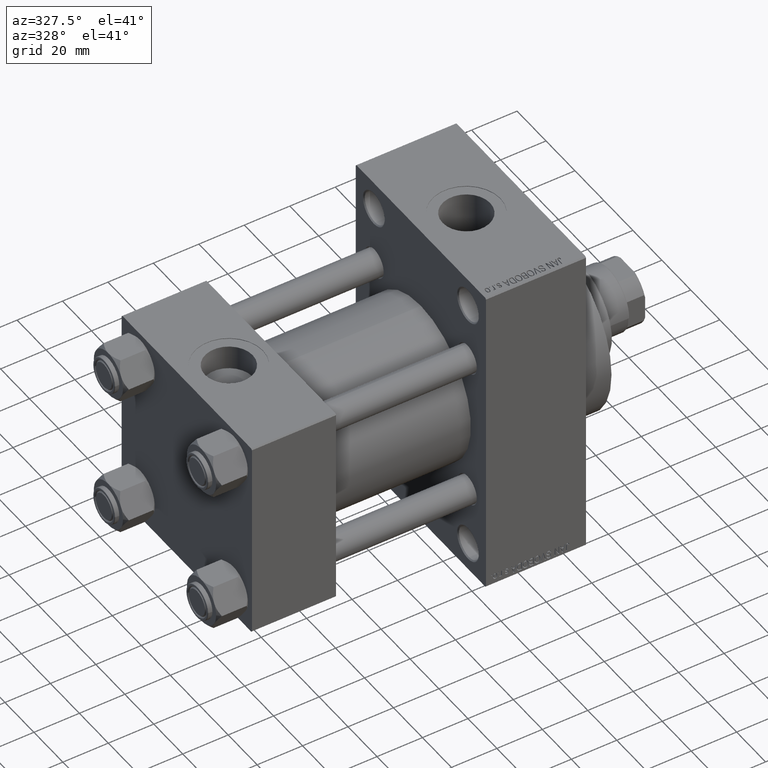
[diagram: clean part render]
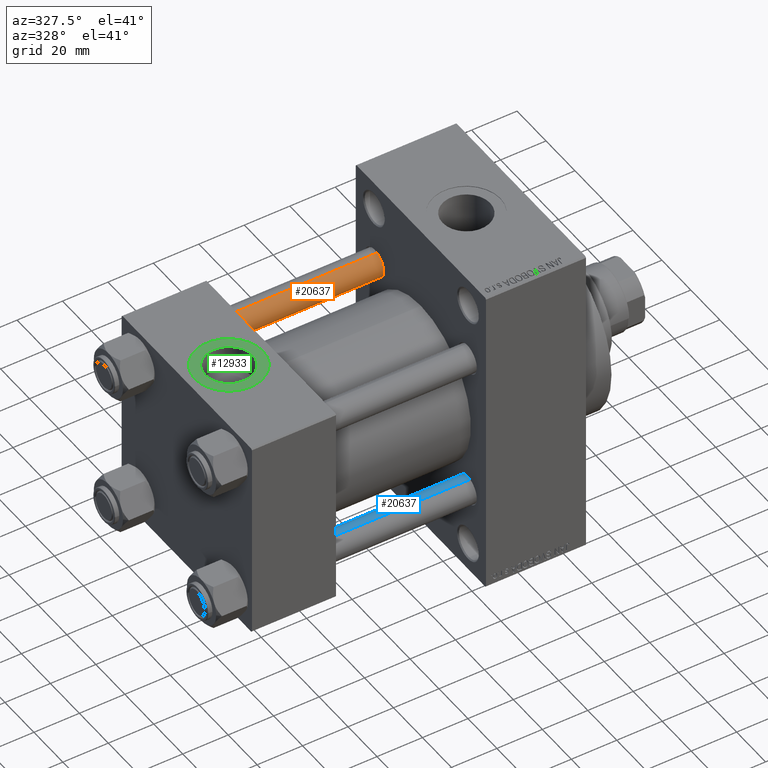
[diagram: same view with three faces highlighted in distinct colors, each labeled with its STEP entity id]
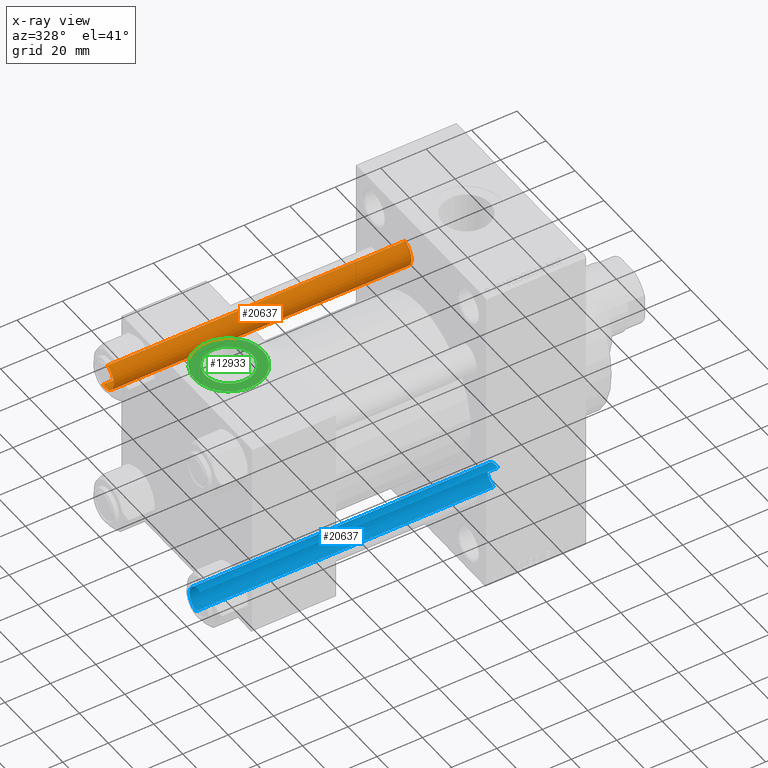
[diagram: x-ray of the same camera — body ghosted, the three highlighted faces saturated]
A machine part, auxiliary view with three faces highlighted in distinct colors.
The next image is the same camera in x-ray (body ghosted, the three faces saturated) — at least one of them is partly hidden behind the body in this view.
Their STEP definitions:

[orange] entity #20637 — the highlighted cylindrical surface (edge-blend (fillet) strip) has radius 6 mm, axis along (-1, -0, 0).
#300 = VERTEX_POINT ( 'NONE', #11860 ) ;
#2718 = VERTEX_POINT ( 'NONE', #45477 ) ;
#3138 = ORIENTED_EDGE ( 'NONE', *, *, #7655, .T. ) ;
#4096 = ORIENTED_EDGE ( 'NONE', *, *, #34142, .T. ) ;
#7655 = EDGE_CURVE ( 'NONE', #2718, #36695, #45165, .T. ) ;
#8172 = CARTESIAN_POINT ( 'NONE',  ( -6.000000000000000888, 0.000000000000000000, 132.0000000000000000 ) ) ;
#11426 = CARTESIAN_POINT ( 'NONE',  ( 6.000000000000000888, 7.347880794884120722E-16, 0.5000000000000281997 ) ) ;
#11860 = CARTESIAN_POINT ( 'NONE',  ( -6.000000000000000888, 0.000000000000000000, 0.5000000000000281997 ) ) ;
#13732 = LINE ( 'NONE', #25434, #32668 ) ;
#13801 = CARTESIAN_POINT ( 'NONE',  ( 0.000000000000000000, 0.000000000000000000, 131.4999999999999716 ) ) ;
#14312 = EDGE_CURVE ( 'NONE', #2718, #15700, #13732, .T. ) ;
#15084 = CARTESIAN_POINT ( 'NONE',  ( -6.000000000000000888, 0.000000000000000000, 131.4999999999999716 ) ) ;
#15294 = VECTOR ( 'NONE', #46059, 1000.000000000000000 ) ;
#15632 = LINE ( 'NONE', #8172, #15294 ) ;
#15700 = VERTEX_POINT ( 'NONE', #11426 ) ;
#16122 = DIRECTION ( 'NONE',  ( 0.000000000000000000, 0.000000000000000000, -1.000000000000000000 ) ) ;
#16428 = EDGE_LOOP ( 'NONE', ( #44850, #3138, #4096, #17149 ) ) ;
#17149 = ORIENTED_EDGE ( 'NONE', *, *, #23592, .T. ) ;
#18181 = FACE_OUTER_BOUND ( 'NONE', #16428, .T. ) ;
#20637 = ADVANCED_FACE ( 'NONE', ( #18181 ), #44365, .T. ) ;
#23592 = EDGE_CURVE ( 'NONE', #300, #15700, #24565, .T. ) ;
#23642 = AXIS2_PLACEMENT_3D ( 'NONE', #13801, #16122, #27583 ) ;
#24565 = CIRCLE ( 'NONE', #40504, 6.000000000000000888 ) ;
#25434 = CARTESIAN_POINT ( 'NONE',  ( 6.000000000000000888, 7.347880794884120722E-16, 132.0000000000000000 ) ) ;
#27583 = DIRECTION ( 'NONE',  ( 1.000000000000000000, 0.000000000000000000, 0.000000000000000000 ) ) ;
#28936 = DIRECTION ( 'NONE',  ( -0.000000000000000000, -0.000000000000000000, -1.000000000000000000 ) ) ;
#32668 = VECTOR ( 'NONE', #28936, 1000.000000000000000 ) ;
#33389 = CARTESIAN_POINT ( 'NONE',  ( 0.000000000000000000, 0.000000000000000000, 132.0000000000000000 ) ) ;
#34142 = EDGE_CURVE ( 'NONE', #36695, #300, #15632, .T. ) ;
#34464 = CARTESIAN_POINT ( 'NONE',  ( 0.000000000000000000, 0.000000000000000000, 0.5000000000000281997 ) ) ;
#36695 = VERTEX_POINT ( 'NONE', #15084 ) ;
#39132 = AXIS2_PLACEMENT_3D ( 'NONE', #33389, #48599, #41120 ) ;
#40504 = AXIS2_PLACEMENT_3D ( 'NONE', #34464, #48699, #41207 ) ;
#41120 = DIRECTION ( 'NONE',  ( -1.000000000000000000, 0.000000000000000000, 0.000000000000000000 ) ) ;
#41207 = DIRECTION ( 'NONE',  ( 1.000000000000000000, 0.000000000000000000, 0.000000000000000000 ) ) ;
#44365 = CYLINDRICAL_SURFACE ( 'NONE', #39132, 6.000000000000000888 ) ;
#44850 = ORIENTED_EDGE ( 'NONE', *, *, #14312, .F. ) ;
#45165 = CIRCLE ( 'NONE', #23642, 6.000000000000000888 ) ;
#45477 = CARTESIAN_POINT ( 'NONE',  ( 6.000000000000000888, 7.347880794884120722E-16, 131.4999999999999716 ) ) ;
#46059 = DIRECTION ( 'NONE',  ( -0.000000000000000000, -0.000000000000000000, -1.000000000000000000 ) ) ;
#48599 = DIRECTION ( 'NONE',  ( -0.000000000000000000, -0.000000000000000000, -1.000000000000000000 ) ) ;
#48699 = DIRECTION ( 'NONE',  ( -0.000000000000000000, -0.000000000000000000, 1.000000000000000000 ) ) ;

[blue] entity #20637 — the highlighted cylindrical surface (edge-blend (fillet) strip) has radius 6 mm, axis along (-1, 0, 0).
#300 = VERTEX_POINT ( 'NONE', #11860 ) ;
#2718 = VERTEX_POINT ( 'NONE', #45477 ) ;
#3138 = ORIENTED_EDGE ( 'NONE', *, *, #7655, .T. ) ;
#4096 = ORIENTED_EDGE ( 'NONE', *, *, #34142, .T. ) ;
#7655 = EDGE_CURVE ( 'NONE', #2718, #36695, #45165, .T. ) ;
#8172 = CARTESIAN_POINT ( 'NONE',  ( -6.000000000000000888, 0.000000000000000000, 132.0000000000000000 ) ) ;
#11426 = CARTESIAN_POINT ( 'NONE',  ( 6.000000000000000888, 7.347880794884120722E-16, 0.5000000000000281997 ) ) ;
#11860 = CARTESIAN_POINT ( 'NONE',  ( -6.000000000000000888, 0.000000000000000000, 0.5000000000000281997 ) ) ;
#13732 = LINE ( 'NONE', #25434, #32668 ) ;
#13801 = CARTESIAN_POINT ( 'NONE',  ( 0.000000000000000000, 0.000000000000000000, 131.4999999999999716 ) ) ;
#14312 = EDGE_CURVE ( 'NONE', #2718, #15700, #13732, .T. ) ;
#15084 = CARTESIAN_POINT ( 'NONE',  ( -6.000000000000000888, 0.000000000000000000, 131.4999999999999716 ) ) ;
#15294 = VECTOR ( 'NONE', #46059, 1000.000000000000000 ) ;
#15632 = LINE ( 'NONE', #8172, #15294 ) ;
#15700 = VERTEX_POINT ( 'NONE', #11426 ) ;
#16122 = DIRECTION ( 'NONE',  ( 0.000000000000000000, 0.000000000000000000, -1.000000000000000000 ) ) ;
#16428 = EDGE_LOOP ( 'NONE', ( #44850, #3138, #4096, #17149 ) ) ;
#17149 = ORIENTED_EDGE ( 'NONE', *, *, #23592, .T. ) ;
#18181 = FACE_OUTER_BOUND ( 'NONE', #16428, .T. ) ;
#20637 = ADVANCED_FACE ( 'NONE', ( #18181 ), #44365, .T. ) ;
#23592 = EDGE_CURVE ( 'NONE', #300, #15700, #24565, .T. ) ;
#23642 = AXIS2_PLACEMENT_3D ( 'NONE', #13801, #16122, #27583 ) ;
#24565 = CIRCLE ( 'NONE', #40504, 6.000000000000000888 ) ;
#25434 = CARTESIAN_POINT ( 'NONE',  ( 6.000000000000000888, 7.347880794884120722E-16, 132.0000000000000000 ) ) ;
#27583 = DIRECTION ( 'NONE',  ( 1.000000000000000000, 0.000000000000000000, 0.000000000000000000 ) ) ;
#28936 = DIRECTION ( 'NONE',  ( -0.000000000000000000, -0.000000000000000000, -1.000000000000000000 ) ) ;
#32668 = VECTOR ( 'NONE', #28936, 1000.000000000000000 ) ;
#33389 = CARTESIAN_POINT ( 'NONE',  ( 0.000000000000000000, 0.000000000000000000, 132.0000000000000000 ) ) ;
#34142 = EDGE_CURVE ( 'NONE', #36695, #300, #15632, .T. ) ;
#34464 = CARTESIAN_POINT ( 'NONE',  ( 0.000000000000000000, 0.000000000000000000, 0.5000000000000281997 ) ) ;
#36695 = VERTEX_POINT ( 'NONE', #15084 ) ;
#39132 = AXIS2_PLACEMENT_3D ( 'NONE', #33389, #48599, #41120 ) ;
#40504 = AXIS2_PLACEMENT_3D ( 'NONE', #34464, #48699, #41207 ) ;
#41120 = DIRECTION ( 'NONE',  ( -1.000000000000000000, 0.000000000000000000, 0.000000000000000000 ) ) ;
#41207 = DIRECTION ( 'NONE',  ( 1.000000000000000000, 0.000000000000000000, 0.000000000000000000 ) ) ;
#44365 = CYLINDRICAL_SURFACE ( 'NONE', #39132, 6.000000000000000888 ) ;
#44850 = ORIENTED_EDGE ( 'NONE', *, *, #14312, .F. ) ;
#45165 = CIRCLE ( 'NONE', #23642, 6.000000000000000888 ) ;
#45477 = CARTESIAN_POINT ( 'NONE',  ( 6.000000000000000888, 7.347880794884120722E-16, 131.4999999999999716 ) ) ;
#46059 = DIRECTION ( 'NONE',  ( -0.000000000000000000, -0.000000000000000000, -1.000000000000000000 ) ) ;
#48599 = DIRECTION ( 'NONE',  ( -0.000000000000000000, -0.000000000000000000, -1.000000000000000000 ) ) ;
#48699 = DIRECTION ( 'NONE',  ( -0.000000000000000000, -0.000000000000000000, 1.000000000000000000 ) ) ;

[green] entity #12933 — the highlighted planar face has unit normal (0, 0, 1).
#1584 = EDGE_LOOP ( 'NONE', ( #15996, #33419 ) ) ;
#2740 = EDGE_CURVE ( 'NONE', #27604, #8292, #30010, .T. ) ;
#3615 = DIRECTION ( 'NONE',  ( 1.000000000000000000, 0.000000000000000000, 0.000000000000000000 ) ) ;
#6567 = DIRECTION ( 'NONE',  ( 1.000000000000000000, 0.000000000000000000, -0.000000000000000000 ) ) ;
#6984 = DIRECTION ( 'NONE',  ( 0.000000000000000000, 0.000000000000000000, 1.000000000000000000 ) ) ;
#7446 = CARTESIAN_POINT ( 'NONE',  ( 18.50000000000000000, -8.673617379884038628E-15, 44.80000000000000426 ) ) ;
#7515 = CARTESIAN_POINT ( 'NONE',  ( 3.499999999999997780, -6.836647181163008250E-15, 44.80000000000000426 ) ) ;
#8292 = VERTEX_POINT ( 'NONE', #21661 ) ;
#9776 = VERTEX_POINT ( 'NONE', #7515 ) ;
#10629 = CIRCLE ( 'NONE', #15422, 10.48000000000000043 ) ;
#10787 = PLANE ( 'NONE',  #37370 ) ;
#11036 = FACE_BOUND ( 'NONE', #1584, .T. ) ;
#12492 = CARTESIAN_POINT ( 'NONE',  ( 33.50000000000000000, -8.673617379884038628E-15, 44.80000000000000426 ) ) ;
#12933 = ADVANCED_FACE ( 'NONE', ( #11036, #25233 ), #10787, .T. ) ;
#15390 = AXIS2_PLACEMENT_3D ( 'NONE', #7446, #41590, #43290 ) ;
#15422 = AXIS2_PLACEMENT_3D ( 'NONE', #22034, #41724, #26508 ) ;
#15996 = ORIENTED_EDGE ( 'NONE', *, *, #2740, .F. ) ;
#21661 = CARTESIAN_POINT ( 'NONE',  ( 8.019999999999999574, -7.390187534377611561E-15, 44.80000000000000426 ) ) ;
#22034 = CARTESIAN_POINT ( 'NONE',  ( 18.50000000000000000, -8.673617379884038628E-15, 44.80000000000000426 ) ) ;
#22250 = DIRECTION ( 'NONE',  ( 0.000000000000000000, 0.000000000000000000, 1.000000000000000000 ) ) ;
#22420 = CARTESIAN_POINT ( 'NONE',  ( 18.50000000000000000, -8.673617379884038628E-15, 44.80000000000000426 ) ) ;
#25233 = FACE_OUTER_BOUND ( 'NONE', #29093, .T. ) ;
#26508 = DIRECTION ( 'NONE',  ( 1.000000000000000000, 0.000000000000000000, 0.000000000000000000 ) ) ;
#26515 = CARTESIAN_POINT ( 'NONE',  ( 18.50000000000000000, -8.673617379884038628E-15, 44.80000000000000426 ) ) ;
#27604 = VERTEX_POINT ( 'NONE', #29396 ) ;
#29093 = EDGE_LOOP ( 'NONE', ( #42572, #29777 ) ) ;
#29396 = CARTESIAN_POINT ( 'NONE',  ( 28.98000000000000043, -8.673617379884038628E-15, 44.80000000000000426 ) ) ;
#29777 = ORIENTED_EDGE ( 'NONE', *, *, #37297, .T. ) ;
#30010 = CIRCLE ( 'NONE', #36368, 10.48000000000000043 ) ;
#30318 = CIRCLE ( 'NONE', #46216, 15.00000000000000355 ) ;
#30377 = EDGE_CURVE ( 'NONE', #48543, #9776, #30318, .T. ) ;
#30521 = CIRCLE ( 'NONE', #15390, 15.00000000000000355 ) ;
#33419 = ORIENTED_EDGE ( 'NONE', *, *, #38040, .F. ) ;
#33724 = CARTESIAN_POINT ( 'NONE',  ( 18.50000000000000000, -8.673617379884038628E-15, 44.80000000000000426 ) ) ;
#36368 = AXIS2_PLACEMENT_3D ( 'NONE', #26515, #41242, #3615 ) ;
#37297 = EDGE_CURVE ( 'NONE', #9776, #48543, #30521, .T. ) ;
#37370 = AXIS2_PLACEMENT_3D ( 'NONE', #33724, #22250, #6567 ) ;
#38040 = EDGE_CURVE ( 'NONE', #8292, #27604, #10629, .T. ) ;
#41242 = DIRECTION ( 'NONE',  ( 0.000000000000000000, 0.000000000000000000, 1.000000000000000000 ) ) ;
#41590 = DIRECTION ( 'NONE',  ( 0.000000000000000000, 0.000000000000000000, 1.000000000000000000 ) ) ;
#41724 = DIRECTION ( 'NONE',  ( 0.000000000000000000, 0.000000000000000000, 1.000000000000000000 ) ) ;
#42572 = ORIENTED_EDGE ( 'NONE', *, *, #30377, .T. ) ;
#43290 = DIRECTION ( 'NONE',  ( 1.000000000000000000, 0.000000000000000000, 0.000000000000000000 ) ) ;
#44873 = DIRECTION ( 'NONE',  ( 1.000000000000000000, 0.000000000000000000, 0.000000000000000000 ) ) ;
#46216 = AXIS2_PLACEMENT_3D ( 'NONE', #22420, #6984, #44873 ) ;
#48543 = VERTEX_POINT ( 'NONE', #12492 ) ;